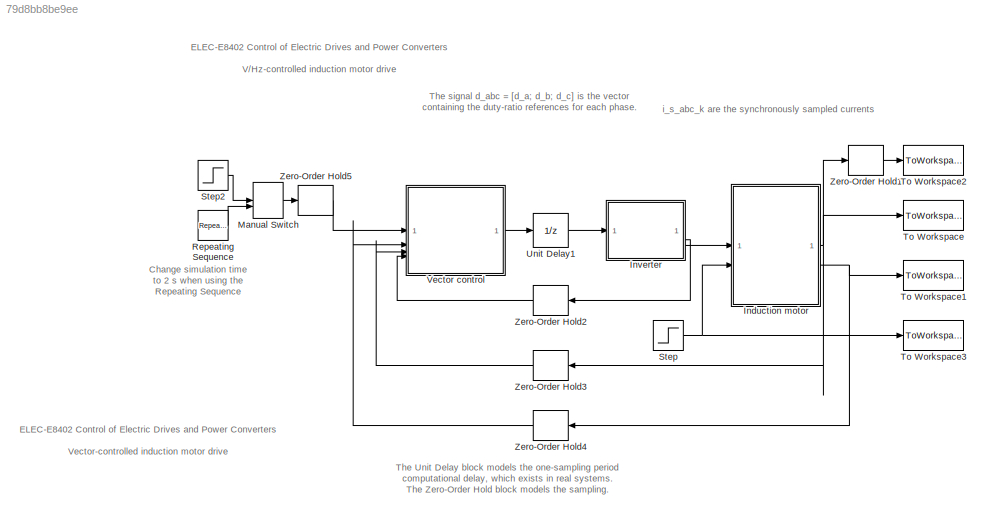
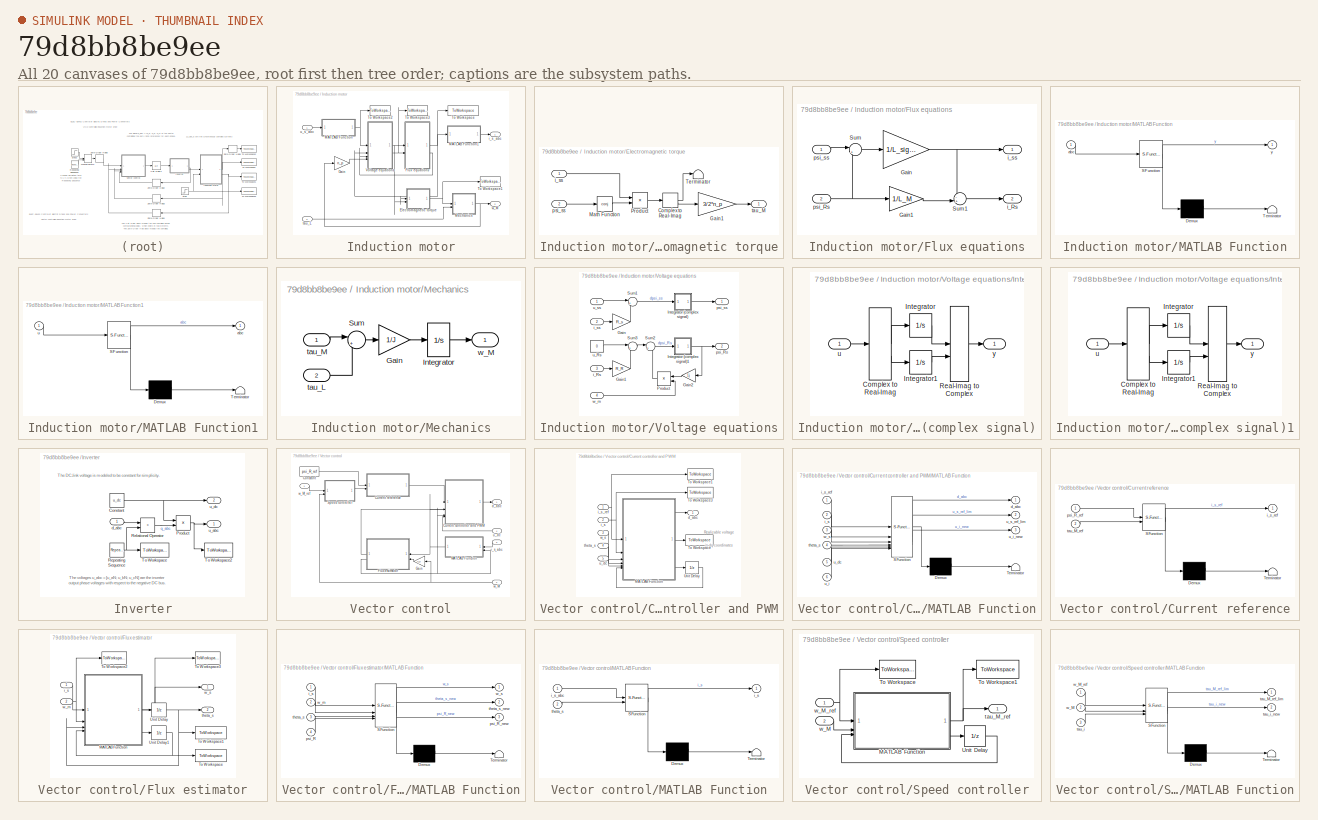
[diagram: thumbnail index - all 20 canvases of the model, root first then tree order]
MODEL slx_79d8bb8be9ee
KIND model
CONFIG AbsTol = 1e-3
CONFIG EnableMultiTasking = on
CONFIG FixedStep = auto
CONFIG MaxStep = T_s
CONFIG MinStep = auto
CONFIG RelTol = 1e-3
CONFIG SampleTimeConstraint = Unconstrained
CONFIG SolverName = ode45
CONFIG StartTime = 0
CONFIG StopTime = 1
BLOCK [SubSystem] Induction motor
BLOCK [SubSystem] Induction motor/Electromagnetic torque
BLOCK [ComplexToRealImag] Induction motor/Electromagnetic torque/Complex to Real-Imag
BLOCK [Gain] Induction motor/Electromagnetic torque/Gain1
  Gain = 3/2*n_p
BLOCK [Math] Induction motor/Electromagnetic torque/Math Function
  Operator = conj
BLOCK [Product] Induction motor/Electromagnetic torque/Product
BLOCK [Terminator] Induction motor/Electromagnetic torque/Terminator
BLOCK [Inport] Induction motor/Electromagnetic torque/i_ss
BLOCK [Inport] Induction motor/Electromagnetic torque/psi_ss
  Port = 2
BLOCK [Outport] Induction motor/Electromagnetic torque/tau_M
BLOCK [SubSystem] Induction motor/Flux equations
BLOCK [Gain] Induction motor/Flux equations/Gain
  Gain = 1/L_sigma
BLOCK [Gain] Induction motor/Flux equations/Gain1
  Gain = 1/L_M
BLOCK [Sum] Induction motor/Flux equations/Sum
  Inputs = |+-
BLOCK [Sum] Induction motor/Flux equations/Sum1
  Inputs = -+|
BLOCK [Outport] Induction motor/Flux equations/i_Rs
  Port = 2
BLOCK [Outport] Induction motor/Flux equations/i_ss
BLOCK [Inport] Induction motor/Flux equations/psi_Rs
  Port = 2
BLOCK [Inport] Induction motor/Flux equations/psi_ss
BLOCK [Gain] Induction motor/Gain
  Gain = n_p
  OutDataTypeStr = Inherit: Same as input
  ParamDataTypeStr = Inherit: Same as input
  SaturateOnIntegerOverflow = on
BLOCK [SubSystem] Induction motor/MATLAB Function
  ErrorFcn = Stateflow.Translate.translate
  LibrarySourceBlock = simulink/User-Defined\nFunctions/MATLAB Function
  PermitHierarchicalResolution = ExplicitOnly
  SFBlockType = MATLAB Function
  ShowPortLabels = none
  TreatAsAtomicUnit = on
BLOCK [Demux] Induction motor/MATLAB Function/ Demux 
  Outputs = 1
BLOCK [S-Function] Induction motor/MATLAB Function/ SFunction 
  EnableBusSupport = on
  FunctionName = sf_sfun
  PortCounts = [1 2]
  SFcnIsStateOwnerBlock = off
  SFunctionDeploymentMode = off
  Tag = Stateflow S-Function 4
BLOCK [Terminator] Induction motor/MATLAB Function/ Terminator 
BLOCK [Inport] Induction motor/MATLAB Function/abc
BLOCK [Outport] Induction motor/MATLAB Function/y
BLOCK [SubSystem] Induction motor/MATLAB Function1
  ErrorFcn = Stateflow.Translate.translate
  LibrarySourceBlock = simulink/User-Defined\nFunctions/MATLAB Function
  PermitHierarchicalResolution = ExplicitOnly
  SFBlockType = MATLAB Function
  ShowPortLabels = none
  TreatAsAtomicUnit = on
BLOCK [Demux] Induction motor/MATLAB Function1/ Demux 
  Outputs = 1
BLOCK [S-Function] Induction motor/MATLAB Function1/ SFunction 
  EnableBusSupport = on
  FunctionName = sf_sfun
  PortCounts = [1 2]
  SFcnIsStateOwnerBlock = off
  SFunctionDeploymentMode = off
  Tag = Stateflow S-Function 3
BLOCK [Terminator] Induction motor/MATLAB Function1/ Terminator 
BLOCK [Outport] Induction motor/MATLAB Function1/abc
BLOCK [Inport] Induction motor/MATLAB Function1/u
BLOCK [SubSystem] Induction motor/Mechanics
BLOCK [Gain] Induction motor/Mechanics/Gain
  Gain = 1/J
  OutDataTypeStr = Inherit: Same as input
  ParamDataTypeStr = Inherit: Same as input
  SaturateOnIntegerOverflow = on
BLOCK [Integrator] Induction motor/Mechanics/Integrator
BLOCK [Sum] Induction motor/Mechanics/Sum
  InputSameDT = on
  Inputs = |+-
  OutDataTypeStr = Inherit: Same as first input
  SaturateOnIntegerOverflow = on
BLOCK [Inport] Induction motor/Mechanics/tau_L
  Port = 2
BLOCK [Inport] Induction motor/Mechanics/tau_M
BLOCK [Outport] Induction motor/Mechanics/w_M
BLOCK [ToWorkspace] Induction motor/To Workspace
  FixptAsFi = on
  MaxDataPoints = inf
  SampleTime = -1
  SaveFormat = Timeseries
  VariableName = i_ss
BLOCK [ToWorkspace] Induction motor/To Workspace1
  FixptAsFi = on
  MaxDataPoints = inf
  SampleTime = -1
  SaveFormat = Timeseries
  VariableName = tau_M
BLOCK [ToWorkspace] Induction motor/To Workspace2
  FixptAsFi = on
  MaxDataPoints = inf
  SampleTime = -1
  SaveFormat = Timeseries
  VariableName = u_ss
BLOCK [ToWorkspace] Induction motor/To Workspace3
  FixptAsFi = on
  MaxDataPoints = inf
  SampleTime = -1
  SaveFormat = Timeseries
  VariableName = psi_Rs
BLOCK [SubSystem] Induction motor/Voltage equations
BLOCK [Gain] Induction motor/Voltage equations/Gain
  Gain = R_s
BLOCK [Gain] Induction motor/Voltage equations/Gain1
  Gain = R_R
BLOCK [Gain] Induction motor/Voltage equations/Gain2
  Gain = 1j
BLOCK [SubSystem] Induction motor/Voltage equations/Integrator (complex signal)
BLOCK [ComplexToRealImag] Induction motor/Voltage equations/Integrator (complex signal)/Complex to Real-Imag
BLOCK [Integrator] Induction motor/Voltage equations/Integrator (complex signal)/Integrator
BLOCK [Integrator] Induction motor/Voltage equations/Integrator (complex signal)/Integrator1
BLOCK [RealImagToComplex] Induction motor/Voltage equations/Integrator (complex signal)/Real-Imag to Complex
BLOCK [Inport] Induction motor/Voltage equations/Integrator (complex signal)/u
BLOCK [Outport] Induction motor/Voltage equations/Integrator (complex signal)/y
BLOCK [SubSystem] Induction motor/Voltage equations/Integrator (complex signal)1
BLOCK [ComplexToRealImag] Induction motor/Voltage equations/Integrator (complex signal)1/Complex to Real-Imag
BLOCK [Integrator] Induction motor/Voltage equations/Integrator (complex signal)1/Integrator
BLOCK [Integrator] Induction motor/Voltage equations/Integrator (complex signal)1/Integrator1
BLOCK [RealImagToComplex] Induction motor/Voltage equations/Integrator (complex signal)1/Real-Imag to Complex
BLOCK [Inport] Induction motor/Voltage equations/Integrator (complex signal)1/u
BLOCK [Outport] Induction motor/Voltage equations/Integrator (complex signal)1/y
BLOCK [Product] Induction motor/Voltage equations/Product
  RndMeth = Zero
BLOCK [Sum] Induction motor/Voltage equations/Sum1
  Inputs = |+-
BLOCK [Sum] Induction motor/Voltage equations/Sum2
  Inputs = |++
BLOCK [Sum] Induction motor/Voltage equations/Sum3
  Inputs = |+-
BLOCK [Inport] Induction motor/Voltage equations/i_Rs
  Port = 3
BLOCK [Inport] Induction motor/Voltage equations/i_ss
  Port = 2
BLOCK [Outport] Induction motor/Voltage equations/psi_Rs
  Port = 2
BLOCK [Outport] Induction motor/Voltage equations/psi_ss
BLOCK [Constant] Induction motor/Voltage equations/u_Rs
  SampleTime = 0
  Value = 0
BLOCK [Inport] Induction motor/Voltage equations/u_ss
BLOCK [Inport] Induction motor/Voltage equations/w_m
  Port = 4
BLOCK [Outport] Induction motor/i_s_abc
BLOCK [Inport] Induction motor/tau_L
  Port = 2
BLOCK [Inport] Induction motor/u_s_abc
BLOCK [Outport] Induction motor/w_M
  Port = 2
BLOCK [SubSystem] Inverter
BLOCK [Constant] Inverter/Constant
  SampleTime = 0
  Value = u_dc
BLOCK [Product] Inverter/Product
BLOCK [RelationalOperator] Inverter/Relational Operator
  InputSameDT = off
  Operator = >
  OutDataTypeStr = boolean
BLOCK [Reference] Inverter/Repeating Sequence  REF=simulink/Sources/Repeating
Sequence
  SourceBlock = simulink/Sources/Repeating\nSequence
  SourceType = Repeating table
BLOCK [ToWorkspace] Inverter/To Workspace
  FixptAsFi = on
  MaxDataPoints = inf
  SampleTime = -1
  SaveFormat = Timeseries
  VariableName = tri
BLOCK [ToWorkspace] Inverter/To Workspace2
  FixptAsFi = on
  MaxDataPoints = inf
  SampleTime = -1
  SaveFormat = Timeseries
  VariableName = u_abc
BLOCK [Inport] Inverter/d_abc
BLOCK [Outport] Inverter/u_abc
BLOCK [Outport] Inverter/u_dc
  Port = 2
BLOCK [ManualSwitch] Manual Switch
BLOCK [Reference] Repeating Sequence  REF=simulink/Sources/Repeating
Sequence
  SourceBlock = simulink/Sources/Repeating\nSequence
  SourceType = Repeating table
BLOCK [Step] Step
  After = T_L
  SampleTime = 0
  Time = .6
BLOCK [Step] Step2
  After = 2*pi*40/n_p
  SampleTime = T_s
  Time = 0.3
BLOCK [ToWorkspace] To Workspace
  FixptAsFi = on
  MaxDataPoints = inf
  SampleTime = -1
  SaveFormat = Timeseries
  VariableName = i_s_abc
BLOCK [ToWorkspace] To Workspace1
  FixptAsFi = on
  MaxDataPoints = inf
  SampleTime = -1
  SaveFormat = Timeseries
  VariableName = w_M
BLOCK [ToWorkspace] To Workspace2
  FixptAsFi = on
  MaxDataPoints = inf
  SampleTime = -1
  SaveFormat = Timeseries
  VariableName = i_s_abc_k
BLOCK [ToWorkspace] To Workspace3
  FixptAsFi = on
  MaxDataPoints = inf
  SampleTime = -1
  SaveFormat = Timeseries
  VariableName = tau_L
BLOCK [UnitDelay] Unit Delay1
  HasFrameUpgradeWarning = on
  SampleTime = T_s
BLOCK [SubSystem] Vector control
BLOCK [Constant] Vector control/Constant
  SampleTime = T_s
  Value = psi_R_ref
BLOCK [SubSystem] Vector control/Current controller and PWM
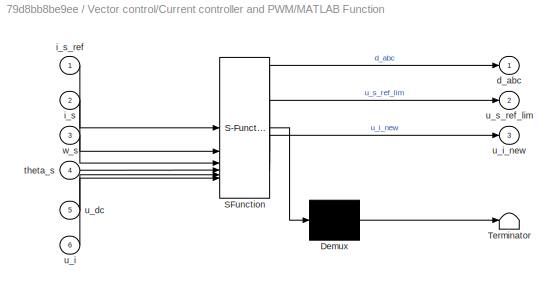
BLOCK [SubSystem] Vector control/Current controller and PWM/MATLAB Function
  ErrorFcn = Stateflow.Translate.translate
  PermitHierarchicalResolution = ExplicitOnly
  SFBlockType = MATLAB Function
  TreatAsAtomicUnit = on
BLOCK [Demux] Vector control/Current controller and PWM/MATLAB Function/ Demux 
  Outputs = 1
BLOCK [S-Function] Vector control/Current controller and PWM/MATLAB Function/ SFunction 
  EnableBusSupport = on
  FunctionName = sf_sfun
  Parameters = L_sigma,T_s,alpha_c
  PortCounts = [6 4]
  SFcnIsStateOwnerBlock = off
  SFunctionDeploymentMode = off
  Tag = Stateflow S-Function 5
BLOCK [Terminator] Vector control/Current controller and PWM/MATLAB Function/ Terminator 
BLOCK [Outport] Vector control/Current controller and PWM/MATLAB Function/d_abc
BLOCK [Inport] Vector control/Current controller and PWM/MATLAB Function/i_s
  Port = 2
BLOCK [Inport] Vector control/Current controller and PWM/MATLAB Function/i_s_ref
BLOCK [Inport] Vector control/Current controller and PWM/MATLAB Function/theta_s
  Port = 4
BLOCK [Inport] Vector control/Current controller and PWM/MATLAB Function/u_dc
  Port = 5
BLOCK [Inport] Vector control/Current controller and PWM/MATLAB Function/u_i
  Port = 6
BLOCK [Outport] Vector control/Current controller and PWM/MATLAB Function/u_i_new
  Port = 3
BLOCK [Outport] Vector control/Current controller and PWM/MATLAB Function/u_s_ref_lim
  Port = 2
BLOCK [Inport] Vector control/Current controller and PWM/MATLAB Function/w_s
  Port = 3
BLOCK [ToWorkspace] Vector control/Current controller and PWM/To Workspace
  FixptAsFi = on
  MaxDataPoints = inf
  SampleTime = -1
  SaveFormat = Timeseries
  VariableName = u_s_ref_lim
BLOCK [ToWorkspace] Vector control/Current controller and PWM/To Workspace1
  FixptAsFi = on
  MaxDataPoints = inf
  SampleTime = -1
  SaveFormat = Timeseries
  VariableName = i_s_ref
BLOCK [ToWorkspace] Vector control/Current controller and PWM/To Workspace3
  FixptAsFi = on
  MaxDataPoints = inf
  SampleTime = -1
  SaveFormat = Timeseries
  VariableName = i_s
BLOCK [UnitDelay] Vector control/Current controller and PWM/Unit Delay
  HasFrameUpgradeWarning = on
  SampleTime = -1
BLOCK [Outport] Vector control/Current controller and PWM/d_abc
  PortDimensions = 3
BLOCK [Inport] Vector control/Current controller and PWM/i_s
  Port = 2
BLOCK [Inport] Vector control/Current controller and PWM/i_s_ref
BLOCK [Inport] Vector control/Current controller and PWM/theta_s
  Port = 4
BLOCK [Inport] Vector control/Current controller and PWM/u_dc
  Port = 5
BLOCK [Inport] Vector control/Current controller and PWM/w_s
  Port = 3
BLOCK [SubSystem] Vector control/Current reference
  ErrorFcn = Stateflow.Translate.translate
  PermitHierarchicalResolution = ExplicitOnly
  SFBlockType = MATLAB Function
  TreatAsAtomicUnit = on
BLOCK [Demux] Vector control/Current reference/ Demux 
  Outputs = 1
BLOCK [S-Function] Vector control/Current reference/ SFunction 
  EnableBusSupport = on
  FunctionName = sf_sfun
  Parameters = L_M,n_p
  PortCounts = [2 2]
  SFcnIsStateOwnerBlock = off
  SFunctionDeploymentMode = off
  Tag = Stateflow S-Function 8
BLOCK [Terminator] Vector control/Current reference/ Terminator 
BLOCK [Outport] Vector control/Current reference/i_s_ref
BLOCK [Inport] Vector control/Current reference/psi_R_ref
BLOCK [Inport] Vector control/Current reference/tau_M_ref
  Port = 2
BLOCK [SubSystem] Vector control/Flux estimator
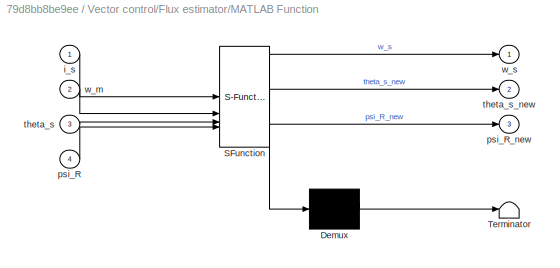
BLOCK [SubSystem] Vector control/Flux estimator/MATLAB Function
  ErrorFcn = Stateflow.Translate.translate
  PermitHierarchicalResolution = ExplicitOnly
  SFBlockType = MATLAB Function
  TreatAsAtomicUnit = on
BLOCK [Demux] Vector control/Flux estimator/MATLAB Function/ Demux 
  Outputs = 1
BLOCK [S-Function] Vector control/Flux estimator/MATLAB Function/ SFunction 
  EnableBusSupport = on
  FunctionName = sf_sfun
  Parameters = L_M,R_R,T_s
  PortCounts = [4 4]
  SFcnIsStateOwnerBlock = off
  SFunctionDeploymentMode = off
  Tag = Stateflow S-Function 6
BLOCK [Terminator] Vector control/Flux estimator/MATLAB Function/ Terminator 
BLOCK [Inport] Vector control/Flux estimator/MATLAB Function/i_s
BLOCK [Inport] Vector control/Flux estimator/MATLAB Function/psi_R
  Port = 4
BLOCK [Outport] Vector control/Flux estimator/MATLAB Function/psi_R_new
  Port = 3
BLOCK [Inport] Vector control/Flux estimator/MATLAB Function/theta_s
  Port = 3
BLOCK [Outport] Vector control/Flux estimator/MATLAB Function/theta_s_new
  Port = 2
BLOCK [Inport] Vector control/Flux estimator/MATLAB Function/w_m
  Port = 2
BLOCK [Outport] Vector control/Flux estimator/MATLAB Function/w_s
BLOCK [ToWorkspace] Vector control/Flux estimator/To Workspace
  FixptAsFi = on
  MaxDataPoints = inf
  SampleTime = -1
  SaveFormat = Timeseries
  VariableName = psi_R_est
BLOCK [ToWorkspace] Vector control/Flux estimator/To Workspace1
  FixptAsFi = on
  MaxDataPoints = inf
  SampleTime = -1
  SaveFormat = Timeseries
  VariableName = theta_s_est
BLOCK [ToWorkspace] Vector control/Flux estimator/To Workspace2
  FixptAsFi = on
  MaxDataPoints = inf
  SampleTime = -1
  SaveFormat = Timeseries
  VariableName = w_m
BLOCK [ToWorkspace] Vector control/Flux estimator/To Workspace3
  FixptAsFi = on
  MaxDataPoints = inf
  SampleTime = -1
  SaveFormat = Timeseries
  VariableName = w_s_est
BLOCK [UnitDelay] Vector control/Flux estimator/Unit Delay
  HasFrameUpgradeWarning = on
  SampleTime = -1
BLOCK [UnitDelay] Vector control/Flux estimator/Unit Delay1
  HasFrameUpgradeWarning = on
  SampleTime = -1
BLOCK [Inport] Vector control/Flux estimator/i_s
BLOCK [Outport] Vector control/Flux estimator/theta_s
  Port = 2
BLOCK [Inport] Vector control/Flux estimator/w_m
  Port = 2
BLOCK [Outport] Vector control/Flux estimator/w_s
BLOCK [Gain] Vector control/Gain
  Gain = n_p
  OutDataTypeStr = Inherit: Same as input
  ParamDataTypeStr = Inherit: Same as input
  SaturateOnIntegerOverflow = on
BLOCK [SubSystem] Vector control/MATLAB Function
  ErrorFcn = Stateflow.Translate.translate
  PermitHierarchicalResolution = ExplicitOnly
  SFBlockType = MATLAB Function
  TreatAsAtomicUnit = on
BLOCK [Demux] Vector control/MATLAB Function/ Demux 
  Outputs = 1
BLOCK [S-Function] Vector control/MATLAB Function/ SFunction 
  EnableBusSupport = on
  FunctionName = sf_sfun
  PortCounts = [2 2]
  SFcnIsStateOwnerBlock = off
  SFunctionDeploymentMode = off
  Tag = Stateflow S-Function 7
BLOCK [Terminator] Vector control/MATLAB Function/ Terminator 
BLOCK [Outport] Vector control/MATLAB Function/i_s
BLOCK [Inport] Vector control/MATLAB Function/i_s_abc
BLOCK [Inport] Vector control/MATLAB Function/theta_s
  Port = 2
BLOCK [SubSystem] Vector control/Speed controller
BLOCK [SubSystem] Vector control/Speed controller/MATLAB Function
  ErrorFcn = Stateflow.Translate.translate
  PermitHierarchicalResolution = ExplicitOnly
  SFBlockType = MATLAB Function
  TreatAsAtomicUnit = on
BLOCK [Demux] Vector control/Speed controller/MATLAB Function/ Demux 
  Outputs = 1
BLOCK [S-Function] Vector control/Speed controller/MATLAB Function/ SFunction 
  EnableBusSupport = on
  FunctionName = sf_sfun
  Parameters = J,T_s,alpha_s,tau_M_max
  PortCounts = [3 3]
  SFcnIsStateOwnerBlock = off
  SFunctionDeploymentMode = off
  Tag = Stateflow S-Function 9
BLOCK [Terminator] Vector control/Speed controller/MATLAB Function/ Terminator 
BLOCK [Outport] Vector control/Speed controller/MATLAB Function/tau_M_ref_lim
BLOCK [Inport] Vector control/Speed controller/MATLAB Function/tau_i
  Port = 3
BLOCK [Outport] Vector control/Speed controller/MATLAB Function/tau_i_new
  Port = 2
BLOCK [Inport] Vector control/Speed controller/MATLAB Function/w_M
  Port = 2
BLOCK [Inport] Vector control/Speed controller/MATLAB Function/w_M_ref
BLOCK [ToWorkspace] Vector control/Speed controller/To Workspace
  FixptAsFi = on
  MaxDataPoints = inf
  SampleTime = -1
  SaveFormat = Timeseries
  VariableName = w_M_ref
BLOCK [ToWorkspace] Vector control/Speed controller/To Workspace1
  FixptAsFi = on
  MaxDataPoints = inf
  SampleTime = -1
  SaveFormat = Timeseries
  VariableName = tau_M_ref
BLOCK [UnitDelay] Vector control/Speed controller/Unit Delay
  HasFrameUpgradeWarning = on
  SampleTime = -1
BLOCK [Outport] Vector control/Speed controller/tau_M_ref
BLOCK [Inport] Vector control/Speed controller/w_M
  Port = 2
BLOCK [Inport] Vector control/Speed controller/w_M_ref
BLOCK [Outport] Vector control/d_abc
BLOCK [Inport] Vector control/i_s_abc
  Port = 3
BLOCK [Inport] Vector control/u_dc
  Port = 4
BLOCK [Inport] Vector control/w_M
  Port = 2
BLOCK [Inport] Vector control/w_M_ref
BLOCK [ZeroOrderHold] Zero-Order Hold1
  SampleTime = T_s
BLOCK [ZeroOrderHold] Zero-Order Hold2
  SampleTime = T_s
BLOCK [ZeroOrderHold] Zero-Order Hold3
  SampleTime = T_s
BLOCK [ZeroOrderHold] Zero-Order Hold4
  SampleTime = T_s
BLOCK [ZeroOrderHold] Zero-Order Hold5
  SampleTime = T_s
ANNOTATION (root): Change simulation time to 2 s when using the Repeating Sequence
ANNOTATION (root): ELEC-E8402 Control of Electric Drives and Power Converters V/Hz-controlled induction motor drive
ANNOTATION (root): ELEC-E8402 Control of Electric Drives and Power Converters Vector-controlled induction motor drive
ANNOTATION (root): The Unit Delay block models the one-sampling period computational delay, which exists in real systems. The Zero-Order Hold block models the sampling.
ANNOTATION (root): The signal d_abc = [d_a; d_b; d_c] is the vector containing the duty-ratio references for each phase.
ANNOTATION (root): i_s_abc_k are the synchronously sampled currents
ANNOTATION Inverter: The DC-link voltage is modeled to be constant for simplicity.
ANNOTATION Inverter: The voltages u_abc = [u_aN; u_bN; u_cN] are the inverter output phase voltages with respect to the negative DC bus.
ANNOTATION Vector control/Current controller and PWM: Realizable voltage in dq coordinates
LINE Induction motor/Electromagnetic torque/Complex to Real-Imag:1 -> Induction motor/Electromagnetic torque/Terminator:1
LINE Induction motor/Electromagnetic torque/Complex to Real-Imag:2 -> Induction motor/Electromagnetic torque/Gain1:1
LINE Induction motor/Electromagnetic torque/Gain1:1 -> Induction motor/Electromagnetic torque/tau_M:1
LINE Induction motor/Electromagnetic torque/Math Function:1 -> Induction motor/Electromagnetic torque/Product:2
LINE Induction motor/Electromagnetic torque/Product:1 -> Induction motor/Electromagnetic torque/Complex to Real-Imag:1
LINE Induction motor/Electromagnetic torque/i_ss:1 -> Induction motor/Electromagnetic torque/Product:1
LINE Induction motor/Electromagnetic torque/psi_ss:1 -> Induction motor/Electromagnetic torque/Math Function:1
NET Induction motor/Electromagnetic torque:1 -> Induction motor/Mechanics:1, Induction motor/To Workspace1:1
LINE Induction motor/Flux equations/Gain1:1 -> Induction motor/Flux equations/Sum1:2
NET Induction motor/Flux equations/Gain:1 -> Induction motor/Flux equations/Sum1:1, Induction motor/Flux equations/i_ss:1
LINE Induction motor/Flux equations/Sum1:1 -> Induction motor/Flux equations/i_Rs:1
LINE Induction motor/Flux equations/Sum:1 -> Induction motor/Flux equations/Gain:1
NET Induction motor/Flux equations/psi_Rs:1 -> Induction motor/Flux equations/Gain1:1, Induction motor/Flux equations/Sum:2
LINE Induction motor/Flux equations/psi_ss:1 -> Induction motor/Flux equations/Sum:1
NET Induction motor/Flux equations:1 -> Induction motor/Electromagnetic torque:1, Induction motor/MATLAB Function1:1, Induction motor/To Workspace:1, Induction motor/Voltage equations:2
LINE Induction motor/Flux equations:2 -> Induction motor/Voltage equations:3
LINE Induction motor/Gain:1 -> Induction motor/Voltage equations:4
LINE Induction motor/MATLAB Function1:1 -> Induction motor/i_s_abc:1
NET Induction motor/MATLAB Function:1 -> Induction motor/To Workspace2:1, Induction motor/Voltage equations:1
LINE Induction motor/Mechanics/Gain:1 -> Induction motor/Mechanics/Integrator:1
LINE Induction motor/Mechanics/Integrator:1 -> Induction motor/Mechanics/w_M:1
LINE Induction motor/Mechanics/Sum:1 -> Induction motor/Mechanics/Gain:1
LINE Induction motor/Mechanics/tau_L:1 -> Induction motor/Mechanics/Sum:2
LINE Induction motor/Mechanics/tau_M:1 -> Induction motor/Mechanics/Sum:1
NET Induction motor/Mechanics:1 -> Induction motor/Gain:1, Induction motor/w_M:1
LINE Induction motor/Voltage equations/Gain1:1 -> Induction motor/Voltage equations/Sum3:2
LINE Induction motor/Voltage equations/Gain2:1 -> Induction motor/Voltage equations/Product:1
LINE Induction motor/Voltage equations/Gain:1 -> Induction motor/Voltage equations/Sum1:2
LINE Induction motor/Voltage equations/Integrator (complex signal)/Complex to Real-Imag:1 -> Induction motor/Voltage equations/Integrator (complex signal)/Integrator:1
LINE Induction motor/Voltage equations/Integrator (complex signal)/Complex to Real-Imag:2 -> Induction motor/Voltage equations/Integrator (complex signal)/Integrator1:1
LINE Induction motor/Voltage equations/Integrator (complex signal)/Integrator1:1 -> Induction motor/Voltage equations/Integrator (complex signal)/Real-Imag to Complex:2
LINE Induction motor/Voltage equations/Integrator (complex signal)/Integrator:1 -> Induction motor/Voltage equations/Integrator (complex signal)/Real-Imag to Complex:1
LINE Induction motor/Voltage equations/Integrator (complex signal)/Real-Imag to Complex:1 -> Induction motor/Voltage equations/Integrator (complex signal)/y:1
LINE Induction motor/Voltage equations/Integrator (complex signal)/u:1 -> Induction motor/Voltage equations/Integrator (complex signal)/Complex to Real-Imag:1
LINE Induction motor/Voltage equations/Integrator (complex signal)1/Complex to Real-Imag:1 -> Induction motor/Voltage equations/Integrator (complex signal)1/Integrator:1
LINE Induction motor/Voltage equations/Integrator (complex signal)1/Complex to Real-Imag:2 -> Induction motor/Voltage equations/Integrator (complex signal)1/Integrator1:1
LINE Induction motor/Voltage equations/Integrator (complex signal)1/Integrator1:1 -> Induction motor/Voltage equations/Integrator (complex signal)1/Real-Imag to Complex:2
LINE Induction motor/Voltage equations/Integrator (complex signal)1/Integrator:1 -> Induction motor/Voltage equations/Integrator (complex signal)1/Real-Imag to Complex:1
LINE Induction motor/Voltage equations/Integrator (complex signal)1/Real-Imag to Complex:1 -> Induction motor/Voltage equations/Integrator (complex signal)1/y:1
LINE Induction motor/Voltage equations/Integrator (complex signal)1/u:1 -> Induction motor/Voltage equations/Integrator (complex signal)1/Complex to Real-Imag:1
NET Induction motor/Voltage equations/Integrator (complex signal)1:1 -> Induction motor/Voltage equations/Gain2:1, Induction motor/Voltage equations/psi_Rs:1
LINE Induction motor/Voltage equations/Integrator (complex signal):1 -> Induction motor/Voltage equations/psi_ss:1
LINE Induction motor/Voltage equations/Product:1 -> Induction motor/Voltage equations/Sum2:2
LINE Induction motor/Voltage equations/Sum1:1 -> Induction motor/Voltage equations/Integrator (complex signal):1
LINE Induction motor/Voltage equations/Sum2:1 -> Induction motor/Voltage equations/Integrator (complex signal)1:1
LINE Induction motor/Voltage equations/Sum3:1 -> Induction motor/Voltage equations/Sum2:1
LINE Induction motor/Voltage equations/i_Rs:1 -> Induction motor/Voltage equations/Gain1:1
LINE Induction motor/Voltage equations/i_ss:1 -> Induction motor/Voltage equations/Gain:1
LINE Induction motor/Voltage equations/u_Rs:1 -> Induction motor/Voltage equations/Sum3:1
LINE Induction motor/Voltage equations/u_ss:1 -> Induction motor/Voltage equations/Sum1:1
LINE Induction motor/Voltage equations/w_m:1 -> Induction motor/Voltage equations/Product:2
NET Induction motor/Voltage equations:1 -> Induction motor/Electromagnetic torque:2, Induction motor/Flux equations:1
NET Induction motor/Voltage equations:2 -> Induction motor/Flux equations:2, Induction motor/To Workspace3:1
LINE Induction motor/tau_L:1 -> Induction motor/Mechanics:2
LINE Induction motor/u_s_abc:1 -> Induction motor/MATLAB Function:1
NET Induction motor:1 -> To Workspace:1, Zero-Order Hold1:1, Zero-Order Hold3:1
NET Induction motor:2 -> To Workspace1:1, Zero-Order Hold4:1
NET Inverter/Constant:1 -> Inverter/Product:1, Inverter/u_dc:1
NET Inverter/Product:1 -> Inverter/To Workspace2:1, Inverter/u_abc:1
LINE Inverter/Relational Operator:1 -> Inverter/Product:2
NET Inverter/Repeating Sequence:1 -> Inverter/Relational Operator:2, Inverter/To Workspace:1
LINE Inverter/d_abc:1 -> Inverter/Relational Operator:1
LINE Inverter:1 -> Induction motor:1
LINE Inverter:2 -> Zero-Order Hold2:1
LINE Manual Switch:1 -> Zero-Order Hold5:1
LINE Repeating Sequence:1 -> Manual Switch:2
LINE Step2:1 -> Manual Switch:1
NET Step:1 -> Induction motor:2, To Workspace3:1
LINE Unit Delay1:1 -> Inverter:1
LINE Vector control/Constant:1 -> Vector control/Current reference:1
LINE Vector control/Current controller and PWM/MATLAB Function:1 -> Vector control/Current controller and PWM/d_abc:1
LINE Vector control/Current controller and PWM/MATLAB Function:2 -> Vector control/Current controller and PWM/To Workspace:1
LINE Vector control/Current controller and PWM/MATLAB Function:3 -> Vector control/Current controller and PWM/Unit Delay:1
LINE Vector control/Current controller and PWM/Unit Delay:1 -> Vector control/Current controller and PWM/MATLAB Function:6
NET Vector control/Current controller and PWM/i_s:1 -> Vector control/Current controller and PWM/MATLAB Function:2, Vector control/Current controller and PWM/To Workspace3:1
NET Vector control/Current controller and PWM/i_s_ref:1 -> Vector control/Current controller and PWM/MATLAB Function:1, Vector control/Current controller and PWM/To Workspace1:1
LINE Vector control/Current controller and PWM/theta_s:1 -> Vector control/Current controller and PWM/MATLAB Function:4
LINE Vector control/Current controller and PWM/u_dc:1 -> Vector control/Current controller and PWM/MATLAB Function:5
LINE Vector control/Current controller and PWM/w_s:1 -> Vector control/Current controller and PWM/MATLAB Function:3
LINE Vector control/Current controller and PWM:1 -> Vector control/d_abc:1
LINE Vector control/Current reference:1 -> Vector control/Current controller and PWM:1
NET Vector control/Flux estimator/MATLAB Function:1 -> Vector control/Flux estimator/To Workspace3:1, Vector control/Flux estimator/w_s:1
LINE Vector control/Flux estimator/MATLAB Function:2 -> Vector control/Flux estimator/Unit Delay:1
LINE Vector control/Flux estimator/MATLAB Function:3 -> Vector control/Flux estimator/Unit Delay1:1
NET Vector control/Flux estimator/Unit Delay1:1 -> Vector control/Flux estimator/MATLAB Function:4, Vector control/Flux estimator/To Workspace:1
NET Vector control/Flux estimator/Unit Delay:1 -> Vector control/Flux estimator/MATLAB Function:3, Vector control/Flux estimator/To Workspace1:1, Vector control/Flux estimator/theta_s:1
LINE Vector control/Flux estimator/i_s:1 -> Vector control/Flux estimator/MATLAB Function:1
NET Vector control/Flux estimator/w_m:1 -> Vector control/Flux estimator/MATLAB Function:2, Vector control/Flux estimator/To Workspace2:1
LINE Vector control/Flux estimator:1 -> Vector control/Current controller and PWM:3
NET Vector control/Flux estimator:2 -> Vector control/Current controller and PWM:4, Vector control/MATLAB Function:2
LINE Vector control/Gain:1 -> Vector control/Flux estimator:2
NET Vector control/MATLAB Function:1 -> Vector control/Current controller and PWM:2, Vector control/Flux estimator:1
NET Vector control/Speed controller/MATLAB Function:1 -> Vector control/Speed controller/To Workspace1:1, Vector control/Speed controller/tau_M_ref:1
LINE Vector control/Speed controller/MATLAB Function:2 -> Vector control/Speed controller/Unit Delay:1
LINE Vector control/Speed controller/Unit Delay:1 -> Vector control/Speed controller/MATLAB Function:3
LINE Vector control/Speed controller/w_M:1 -> Vector control/Speed controller/MATLAB Function:2
NET Vector control/Speed controller/w_M_ref:1 -> Vector control/Speed controller/MATLAB Function:1, Vector control/Speed controller/To Workspace:1
LINE Vector control/Speed controller:1 -> Vector control/Current reference:2
LINE Vector control/i_s_abc:1 -> Vector control/MATLAB Function:1
LINE Vector control/u_dc:1 -> Vector control/Current controller and PWM:5
NET Vector control/w_M:1 -> Vector control/Gain:1, Vector control/Speed controller:2
LINE Vector control/w_M_ref:1 -> Vector control/Speed controller:1
LINE Vector control:1 -> Unit Delay1:1
LINE Zero-Order Hold1:1 -> To Workspace2:1
LINE Zero-Order Hold2:1 -> Vector control:4
LINE Zero-Order Hold3:1 -> Vector control:3
LINE Zero-Order Hold4:1 -> Vector control:2
LINE Zero-Order Hold5:1 -> Vector control:1
note: NET lines group one-source signal fan-out (src -> all destinations, sorted); 1:1 wires keep LINE
CHART Induction motor/MATLAB Function1 states=1 transitions=1
  STATE_LABEL 'eML_blk_kernel()'
  STATE_LABEL 'SCRIPT:\nfunction abc = alphabeta2abc(u)\n\na = real(u);\nb = real(exp(1j*4*pi/3)*u);\nc = real(exp(1j*2*pi/3)*u);\n\nabc = [a; b; c];'
CHART Induction motor/MATLAB Function states=1 transitions=1
  STATE_LABEL 'eML_blk_kernel()'
  STATE_LABEL 'SCRIPT:\nfunction y = abc2alphabeta(abc)\n\ny = 2/3*(abc(1) + exp(1j*2*pi/3)*abc(2) + exp(1j*4*pi/3)*abc(3));\n'
CHART Vector control/Current controller and PWM/MATLAB Function states=1 transitions=1
  STATE_LABEL 'eML_blk_kernel()'
  STATE_LABEL 'SCRIPT:\nfunction [d_abc, u_s_ref_lim, u_i_new] = cc(i_s_ref, i_s, w_s, theta_s, ...\n    u_dc, u_i, L_sigma, alpha_c, T_s)\n\n%% Current controller \n% Gains\nk_i = alpha_c^2*L_sigma;                % Integral gain\nk_t = alpha_c*L_sigma;                   % Reference gain\nk_p = (2*alpha_c - 1j*w_s)*L_sigma;     % Proportional gain\n\n% Voltage reference in synchronous coordinates\nu_s_ref = k_t*i_s_ref - ...<+1547ch>'
CHART Vector control/Flux estimator/MATLAB Function states=1 transitions=1
  STATE_LABEL 'eML_blk_kernel()'
  STATE_LABEL 'SCRIPT:\nfunction [w_s, theta_s_new, psi_R_new] = estimator(i_s, w_m, theta_s, ...\n    psi_R, R_R, L_M, T_s)\n\n% Current components\ni_d = real(i_s);\ni_q = imag(i_s);\n\n% Angular frequency of the rotor flux\nif(psi_R > 0) \t                    % Avoid division by zero\n\tw_s = w_m+R_R*i_q/psi_R;\nelse\n\tw_s = w_m;\nend\n\n% Update the states\npsi_R_new = psi_R+T_s*((-R_R/L_M)*psi_R+R_R*i_d);\ntheta_s_new = theta...<+206ch>'
CHART Vector control/MATLAB Function states=1 transitions=1
  STATE_LABEL 'eML_blk_kernel()'
  STATE_LABEL 'SCRIPT:\nfunction i_s = abc2dq(i_s_abc, theta_s)\n\n% Phase currents\ni_a = i_s_abc(1); i_b = i_s_abc(2); i_c = i_s_abc(3); \n\n% Space-vector transformation and coordinate transformation\ni_ss = 2/3*(i_a+i_b*exp(1i*2*pi/3)+i_c*exp(1i*4*pi/3)); % abc to alfa-beeta\ni_s = i_ss*exp(-1i*theta_s); \t% alfa-beeta to dq'
CHART Vector control/Current reference states=1 transitions=1
  STATE_LABEL 'eML_blk_kernel()'
  STATE_LABEL 'SCRIPT:\nfunction i_s_ref = curr_ref(psi_R_ref, tau_M_ref, L_M, n_p)\n\n% Current reference in estimated rotor-flux coordinates\ni_d_ref = psi_R_ref/L_M;\ni_q_ref = 2*tau_M_ref/(3*n_p*psi_R_ref);\n\ni_s_ref = i_d_ref + 1j*i_q_ref;\n\n'
CHART Vector control/Speed controller/MATLAB Function states=1 transitions=1
  STATE_LABEL 'eML_blk_kernel()'
  STATE_LABEL 'SCRIPT:\n% 2DOF PI speed controller\nfunction [tau_M_ref_lim, tau_i_new] = speed_ctrl(w_M_ref, w_M, tau_i, ...\n    J, alpha_s, tau_M_max, T_s)\n\n% Gains\nk_i = alpha_s^2*J;\nk_t = alpha_s*J;\nk_p = 2*alpha_s*J;\n\n% Ideal reference\ntau_M_ref = k_t*w_M_ref - k_p*w_M + tau_i;\n\n% Limited reference\ntau_M_ref_lim = tau_M_ref;\nif(tau_M_ref_lim > tau_M_max)\n    tau_M_ref_lim = tau_M_max;\nelseif(tau_M_ref_lim < -...<+163ch>'
CHART  states=0 transitions=0
CHART  states=0 transitions=0
CHART  states=0 transitions=0
CHART  states=0 transitions=0
CHART  states=0 transitions=0
CHART  states=0 transitions=0
CHART  states=0 transitions=0
